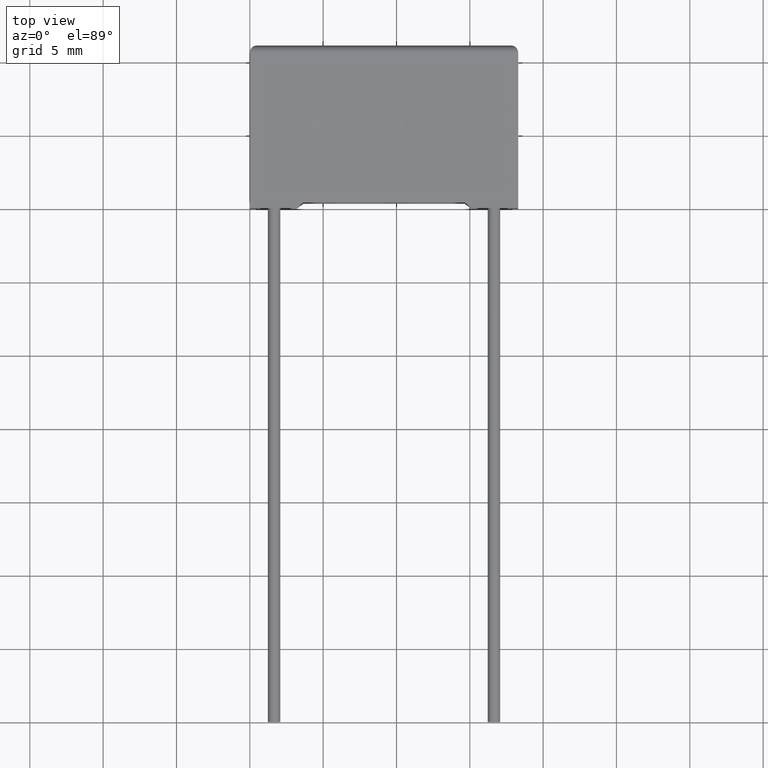
[diagram: clean part render]
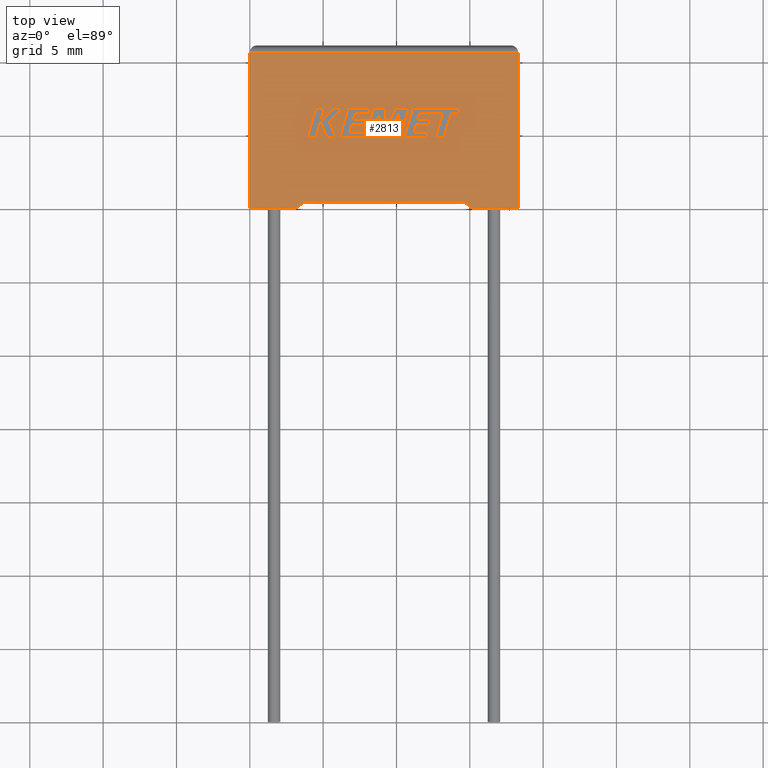
[diagram: same view with one face highlighted and labeled with its STEP entity id]
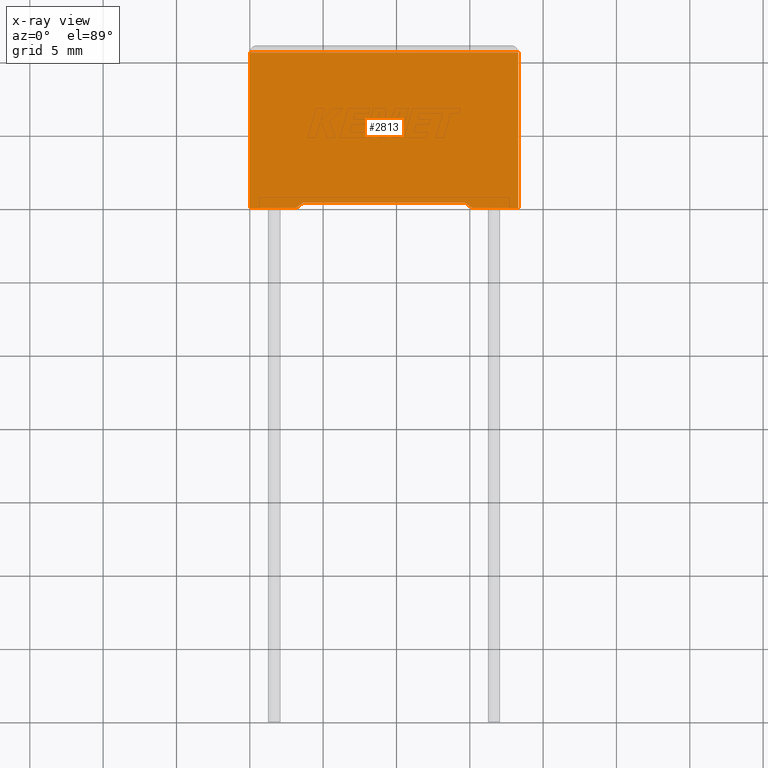
[diagram: x-ray of the same camera — body ghosted, the highlighted face saturated]
A machine part, top view. The second image highlights one B-rep face of the part: STEP entity #2813.
The next image is the same camera in x-ray: the body ghosted, the highlighted face saturated — about 0% of this face is hidden behind the body in this view.
In plain terms, the highlighted planar face has unit normal (0, 0, -1).
Its self-contained STEP definition (entity closure, byte-faithful):
#12 = LINE ( 'NONE', #265, #692 ) ;
#34 = VECTOR ( 'NONE', #1807, 1000.000000000000000 ) ;
#37 = VECTOR ( 'NONE', #913, 1000.000000000000114 ) ;
#111 = CARTESIAN_POINT ( 'NONE',  ( 0.000000000000000000, 0.000000000000000000, 5.200000000000000178 ) ) ;
#222 = ORIENTED_EDGE ( 'NONE', *, *, #1043, .T. ) ;
#228 = VERTEX_POINT ( 'NONE', #460 ) ;
#265 = CARTESIAN_POINT ( 'NONE',  ( 3.150000000000000799, 1.928818708657082084E-16, 5.200000000000000178 ) ) ;
#360 = FACE_OUTER_BOUND ( 'NONE', #2614, .T. ) ;
#460 = CARTESIAN_POINT ( 'NONE',  ( 15.15000000000000036, 1.928818708657082084E-16, 5.200000000000000178 ) ) ;
#532 = ORIENTED_EDGE ( 'NONE', *, *, #2063, .T. ) ;
#606 = EDGE_CURVE ( 'NONE', #228, #2128, #1998, .T. ) ;
#660 = VECTOR ( 'NONE', #1033, 1000.000000000000000 ) ;
#692 = VECTOR ( 'NONE', #2178, 1000.000000000000114 ) ;
#913 = DIRECTION ( 'NONE',  ( 0.7988027325872831819, -0.6015930471764857623, -0.000000000000000000 ) ) ;
#1033 = DIRECTION ( 'NONE',  ( 1.000000000000000000, 0.000000000000000000, 0.000000000000000000 ) ) ;
#1043 = EDGE_CURVE ( 'NONE', #1044, #1400, #1737, .T. ) ;
#1044 = VERTEX_POINT ( 'NONE', #111 ) ;
#1086 = CARTESIAN_POINT ( 'NONE',  ( 0.000000000000000000, 10.59999999999999964, 5.200000000000000178 ) ) ;
#1186 = CARTESIAN_POINT ( 'NONE',  ( 0.000000000000000000, 0.000000000000000000, 5.200000000000000178 ) ) ;
#1202 = CARTESIAN_POINT ( 'NONE',  ( 0.000000000000000000, 10.59999999999999964, 5.200000000000000178 ) ) ;
#1216 = DIRECTION ( 'NONE',  ( 0.000000000000000000, 1.000000000000000000, 0.000000000000000000 ) ) ;
#1233 = AXIS2_PLACEMENT_3D ( 'NONE', #1186, #2120, #1845 ) ;
#1272 = EDGE_CURVE ( 'NONE', #2653, #2574, #1805, .T. ) ;
#1283 = VECTOR ( 'NONE', #1216, 1000.000000000000000 ) ;
#1287 = CARTESIAN_POINT ( 'NONE',  ( 18.30000000000000071, 10.59999999999999964, 5.200000000000000178 ) ) ;
#1298 = ORIENTED_EDGE ( 'NONE', *, *, #606, .T. ) ;
#1303 = PLANE ( 'NONE',  #1233 ) ;
#1388 = ORIENTED_EDGE ( 'NONE', *, *, #1272, .F. ) ;
#1400 = VERTEX_POINT ( 'NONE', #2222 ) ;
#1430 = CARTESIAN_POINT ( 'NONE',  ( 18.30000000000000071, 0.000000000000000000, 5.200000000000000178 ) ) ;
#1540 = CARTESIAN_POINT ( 'NONE',  ( 0.000000000000000000, 0.000000000000000000, 5.200000000000000178 ) ) ;
#1699 = VERTEX_POINT ( 'NONE', #1202 ) ;
#1737 = LINE ( 'NONE', #1540, #2279 ) ;
#1742 = CARTESIAN_POINT ( 'NONE',  ( 3.658191000000000859, 0.3827279999999998461, 5.200000000000000178 ) ) ;
#1797 = CARTESIAN_POINT ( 'NONE',  ( 0.000000000000000000, 0.000000000000000000, 5.200000000000000178 ) ) ;
#1805 = LINE ( 'NONE', #2737, #1955 ) ;
#1807 = DIRECTION ( 'NONE',  ( -1.000000000000000000, 0.000000000000000000, 0.000000000000000000 ) ) ;
#1821 = ORIENTED_EDGE ( 'NONE', *, *, #2923, .T. ) ;
#1845 = DIRECTION ( 'NONE',  ( -1.000000000000000000, 0.000000000000000000, -0.000000000000000000 ) ) ;
#1897 = ORIENTED_EDGE ( 'NONE', *, *, #2583, .F. ) ;
#1910 = LINE ( 'NONE', #2652, #1283 ) ;
#1953 = ORIENTED_EDGE ( 'NONE', *, *, #2411, .T. ) ;
#1955 = VECTOR ( 'NONE', #2253, 1000.000000000000000 ) ;
#1970 = CARTESIAN_POINT ( 'NONE',  ( 14.64180899999999852, 0.3827279999999998461, 5.200000000000000178 ) ) ;
#1998 = LINE ( 'NONE', #2450, #660 ) ;
#2014 = VECTOR ( 'NONE', #2414, 1000.000000000000000 ) ;
#2063 = EDGE_CURVE ( 'NONE', #1699, #1044, #2214, .T. ) ;
#2082 = LINE ( 'NONE', #3019, #37 ) ;
#2120 = DIRECTION ( 'NONE',  ( 0.000000000000000000, 0.000000000000000000, -1.000000000000000000 ) ) ;
#2128 = VERTEX_POINT ( 'NONE', #1430 ) ;
#2178 = DIRECTION ( 'NONE',  ( -0.7988027325872831819, -0.6015930471764857623, -0.000000000000000000 ) ) ;
#2214 = LINE ( 'NONE', #1797, #2014 ) ;
#2222 = CARTESIAN_POINT ( 'NONE',  ( 3.150000000000000799, 1.928818708657082084E-16, 5.200000000000000178 ) ) ;
#2253 = DIRECTION ( 'NONE',  ( -1.000000000000000000, -1.184530094712512190E-16, 0.000000000000000000 ) ) ;
#2256 = LINE ( 'NONE', #1086, #34 ) ;
#2279 = VECTOR ( 'NONE', #2894, 1000.000000000000000 ) ;
#2411 = EDGE_CURVE ( 'NONE', #2766, #1699, #2256, .T. ) ;
#2414 = DIRECTION ( 'NONE',  ( -0.000000000000000000, -1.000000000000000000, -0.000000000000000000 ) ) ;
#2450 = CARTESIAN_POINT ( 'NONE',  ( 0.000000000000000000, 0.000000000000000000, 5.200000000000000178 ) ) ;
#2574 = VERTEX_POINT ( 'NONE', #1742 ) ;
#2583 = EDGE_CURVE ( 'NONE', #2574, #1400, #12, .T. ) ;
#2614 = EDGE_LOOP ( 'NONE', ( #2932, #1953, #532, #222, #1897, #1388, #1821, #1298 ) ) ;
#2652 = CARTESIAN_POINT ( 'NONE',  ( 18.30000000000000071, 0.000000000000000000, 5.200000000000000178 ) ) ;
#2653 = VERTEX_POINT ( 'NONE', #1970 ) ;
#2660 = EDGE_CURVE ( 'NONE', #2128, #2766, #1910, .T. ) ;
#2737 = CARTESIAN_POINT ( 'NONE',  ( 9.150000000000000355, 0.3827280000000004567, 5.200000000000000178 ) ) ;
#2766 = VERTEX_POINT ( 'NONE', #1287 ) ;
#2813 = ADVANCED_FACE ( 'NONE', ( #360 ), #1303, .F. ) ;
#2894 = DIRECTION ( 'NONE',  ( 1.000000000000000000, 0.000000000000000000, 0.000000000000000000 ) ) ;
#2923 = EDGE_CURVE ( 'NONE', #2653, #228, #2082, .T. ) ;
#2932 = ORIENTED_EDGE ( 'NONE', *, *, #2660, .T. ) ;
#3019 = CARTESIAN_POINT ( 'NONE',  ( 15.15000000000000036, 1.928818708657082084E-16, 5.200000000000000178 ) ) ;